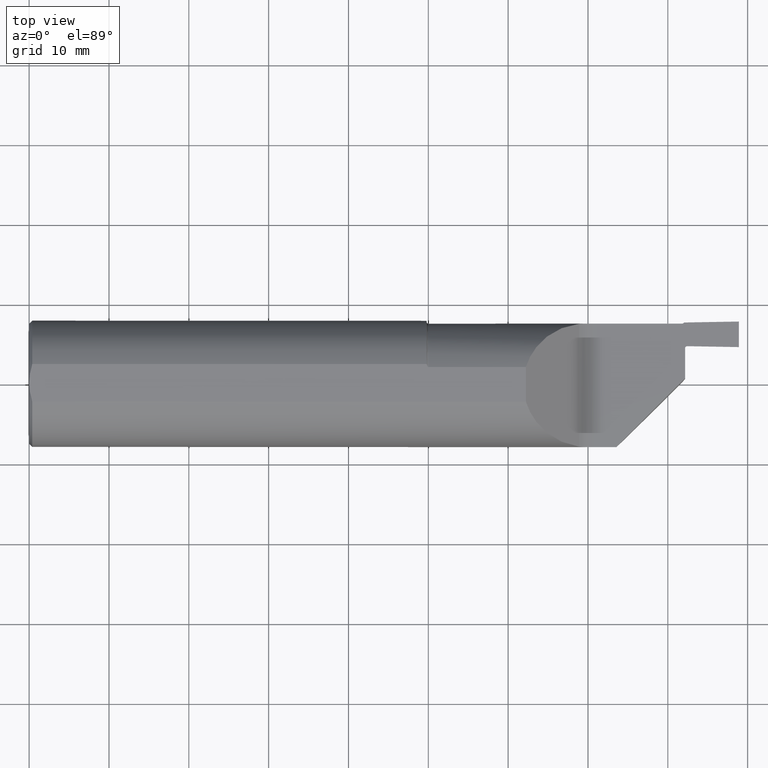
[diagram: clean part render]
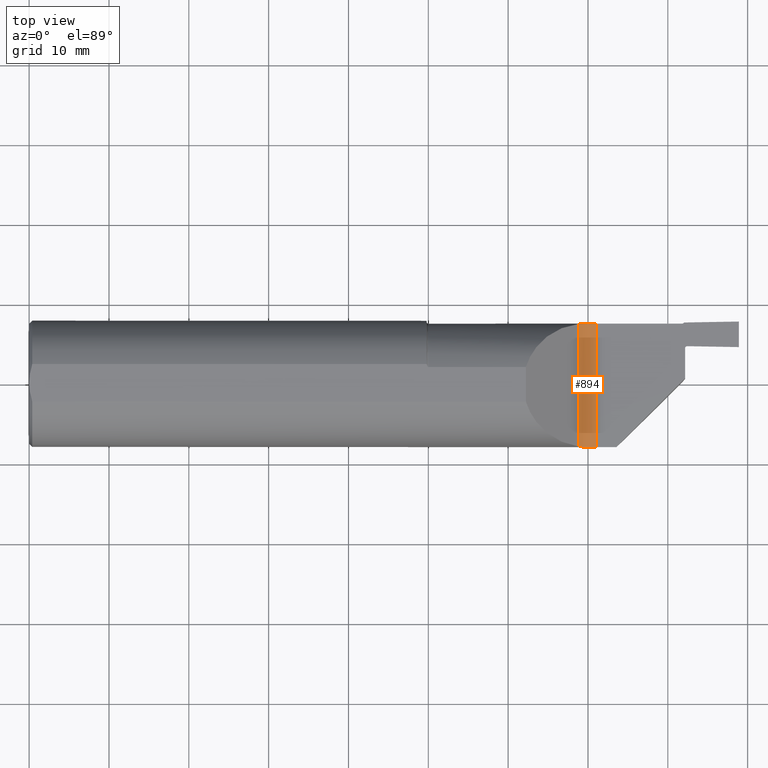
[diagram: same view with one face highlighted and labeled with its STEP entity id]
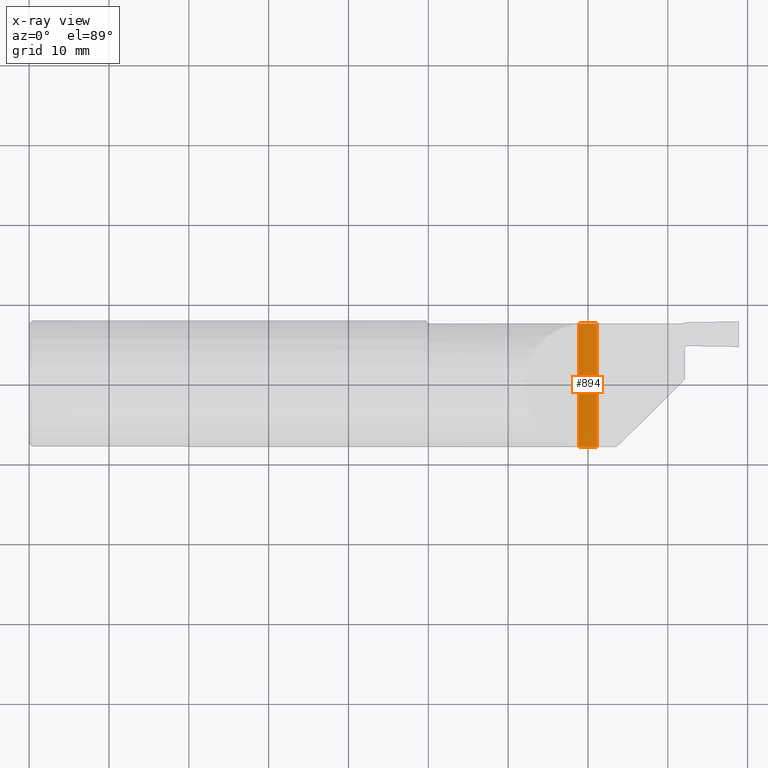
[diagram: x-ray of the same camera — body ghosted, the highlighted face saturated]
A machine part, top view. The second image highlights one B-rep face of the part: STEP entity #894.
The next image is the same camera in x-ray: the body ghosted, the highlighted face saturated — about 0% of this face is hidden behind the body in this view.
In plain terms, the highlighted cylindrical surface (edge-blend (fillet) strip) has radius 3.175 mm, axis along (0, -1, 0).
Its self-contained STEP definition (entity closure, byte-faithful):
#11 = VERTEX_POINT ( 'NONE', #580 ) ;
#17 = LINE ( 'NONE', #331, #753 ) ;
#23 = DIRECTION ( 'NONE',  ( 0.000000000000000000, 0.000000000000000000, -1.000000000000000000 ) ) ;
#69 = VERTEX_POINT ( 'NONE', #105 ) ;
#86 = CARTESIAN_POINT ( 'NONE',  ( 2.767240569818964158, 0.2973273312837140803, 0.004032474903713762111 ) ) ;
#102 = CARTESIAN_POINT ( 'NONE',  ( 2.759502396207997421, -0.3123005131455937611, 0.006382863975782117338 ) ) ;
#105 = CARTESIAN_POINT ( 'NONE',  ( 2.799776695296631868, -0.3123499999999999610, 0.000000000000000000 ) ) ;
#113 = CARTESIAN_POINT ( 'NONE',  ( 2.791522665335699482, -0.3123499999999999055, 1.500648922300925238E-19 ) ) ;
#159 = CARTESIAN_POINT ( 'NONE',  ( 2.783262096974776334, 0.2973522559233169882, 0.0008266951744985345579 ) ) ;
#187 = CARTESIAN_POINT ( 'NONE',  ( 2.783406291026808255, -0.3123529779476911239, 0.0008095237780517812410 ) ) ;
#219 = EDGE_LOOP ( 'NONE', ( #565, #220, #261, #792 ) ) ;
#220 = ORIENTED_EDGE ( 'NONE', *, *, #906, .F. ) ;
#221 = CARTESIAN_POINT ( 'NONE',  ( 2.744331949518403757, 0.2971080177065928973, 0.01267066154421023563 ) ) ;
#225 = CARTESIAN_POINT ( 'NONE',  ( 2.711388347648312713, 0.2951971671624062377, 0.03661165235168226811 ) ) ;
#258 = DIRECTION ( 'NONE',  ( -0.000000000000000000, 1.000000000000000000, -0.000000000000000000 ) ) ;
#261 = ORIENTED_EDGE ( 'NONE', *, *, #921, .F. ) ;
#293 = VERTEX_POINT ( 'NONE', #492 ) ;
#295 = CARTESIAN_POINT ( 'NONE',  ( 2.799776695296631868, 0.2973492383597806654, -1.707404996040164512E-17 ) ) ;
#318 = CARTESIAN_POINT ( 'NONE',  ( 2.737198267252211270, -0.3119476854304215618, 0.01648500144479711146 ) ) ;
#331 = CARTESIAN_POINT ( 'NONE',  ( 2.711388347648313157, 0.4123500000000000498, 0.03661165235168205301 ) ) ;
#352 = CARTESIAN_POINT ( 'NONE',  ( 2.799776695296631868, 0.2973492383597806654, -1.707404996040164512E-17 ) ) ;
#377 = CARTESIAN_POINT ( 'NONE',  ( 2.791523900243894740, 0.2973492383597806099, -2.240969057302715998E-17 ) ) ;
#378 = EDGE_CURVE ( 'NONE', #621, #69, #874, .T. ) ;
#395 = B_SPLINE_CURVE_WITH_KNOTS ( 'NONE', 3,
 ( #225, #450, #439, #731, #221, #434, #86, #159, #377, #295 ),
 .UNSPECIFIED., .F., .F.,
 ( 4, 2, 2, 2, 4 ),
 ( 0.000000000000000000, 0.0006199328346996068641, 0.001239865669399213728, 0.001859798504098820592, 0.002479731338798427456 ),
 .UNSPECIFIED. ) ;
#434 = CARTESIAN_POINT ( 'NONE',  ( 2.759453897954011747, 0.2972994535838713870, 0.006399527291019162234 ) ) ;
#439 = CARTESIAN_POINT ( 'NONE',  ( 2.723503842258455432, 0.2963290950768749377, 0.02563397962624387738 ) ) ;
#450 = CARTESIAN_POINT ( 'NONE',  ( 2.717205560604044390, 0.2958834220351635458, 0.03079443939595079630 ) ) ;
#462 = DIRECTION ( 'NONE',  ( 0.000000000000000000, -1.000000000000000000, 0.000000000000000000 ) ) ;
#484 = AXIS2_PLACEMENT_3D ( 'NONE', #807, #462, #23 ) ;
#492 = CARTESIAN_POINT ( 'NONE',  ( 2.711388347648312713, 0.2951971671624062377, 0.03661165235168226811 ) ) ;
#521 = DIRECTION ( 'NONE',  ( 0.000000000000000000, -1.000000000000000000, 0.000000000000000000 ) ) ;
#526 = CARTESIAN_POINT ( 'NONE',  ( 2.711388347648313157, -0.3101968881405479106, 0.03661165235168183096 ) ) ;
#565 = ORIENTED_EDGE ( 'NONE', *, *, #800, .F. ) ;
#580 = CARTESIAN_POINT ( 'NONE',  ( 2.711388347648313157, -0.3101968881405479106, 0.03661165235168183096 ) ) ;
#582 = CARTESIAN_POINT ( 'NONE',  ( 2.799776695296631868, -0.4123500000000000498, 0.000000000000000000 ) ) ;
#594 = CARTESIAN_POINT ( 'NONE',  ( 2.723623800555937446, -0.3113371557985921134, 0.02553995178686549114 ) ) ;
#601 = CARTESIAN_POINT ( 'NONE',  ( 2.744373049089623429, -0.3121094746894236827, 0.01265018863995691530 ) ) ;
#621 = VERTEX_POINT ( 'NONE', #352 ) ;
#731 = CARTESIAN_POINT ( 'NONE',  ( 2.737023584286429223, 0.2969416066437378099, 0.01658781814739456600 ) ) ;
#739 = CARTESIAN_POINT ( 'NONE',  ( 2.767437696019467985, -0.3123286490856566622, 0.003981597903693289385 ) ) ;
#743 = FACE_OUTER_BOUND ( 'NONE', #219, .T. ) ;
#753 = VECTOR ( 'NONE', #258, 39.37007874015748143 ) ;
#763 = B_SPLINE_CURVE_WITH_KNOTS ( 'NONE', 3,
 ( #829, #113, #187, #739, #102, #601, #318, #594, #883, #526 ),
 .UNSPECIFIED., .F., .F.,
 ( 4, 2, 2, 2, 4 ),
 ( 0.000000000000000000, 0.0006200545602135924036, 0.001240109120427184807, 0.001860163680640777211, 0.002480218240854369614 ),
 .UNSPECIFIED. ) ;
#792 = ORIENTED_EDGE ( 'NONE', *, *, #378, .F. ) ;
#800 = EDGE_CURVE ( 'NONE', #293, #621, #395, .T. ) ;
#807 = CARTESIAN_POINT ( 'NONE',  ( 2.799776695296631868, -0.4123500000000000498, 0.1249999999999999861 ) ) ;
#829 = CARTESIAN_POINT ( 'NONE',  ( 2.799776695296631868, -0.3123499999999999610, 0.000000000000000000 ) ) ;
#874 = LINE ( 'NONE', #582, #917 ) ;
#880 = CYLINDRICAL_SURFACE ( 'NONE', #484, 0.1250000000000000000 ) ;
#883 = CARTESIAN_POINT ( 'NONE',  ( 2.717205864027919304, -0.3108835129758812377, 0.03079413597207514286 ) ) ;
#894 = ADVANCED_FACE ( 'NONE', ( #743 ), #880, .F. ) ;
#906 = EDGE_CURVE ( 'NONE', #11, #293, #17, .T. ) ;
#917 = VECTOR ( 'NONE', #521, 39.37007874015748143 ) ;
#921 = EDGE_CURVE ( 'NONE', #69, #11, #763, .T. ) ;